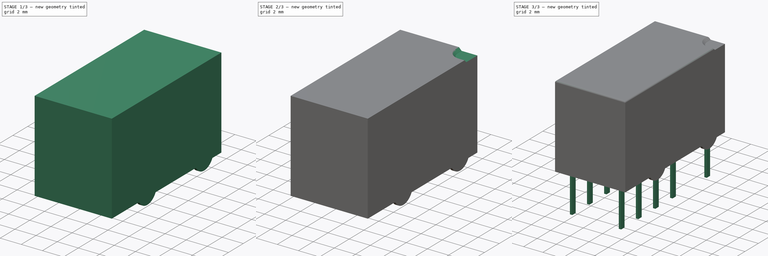
[diagram: build sequence overview — one tinted view per stage of 3, left to right]
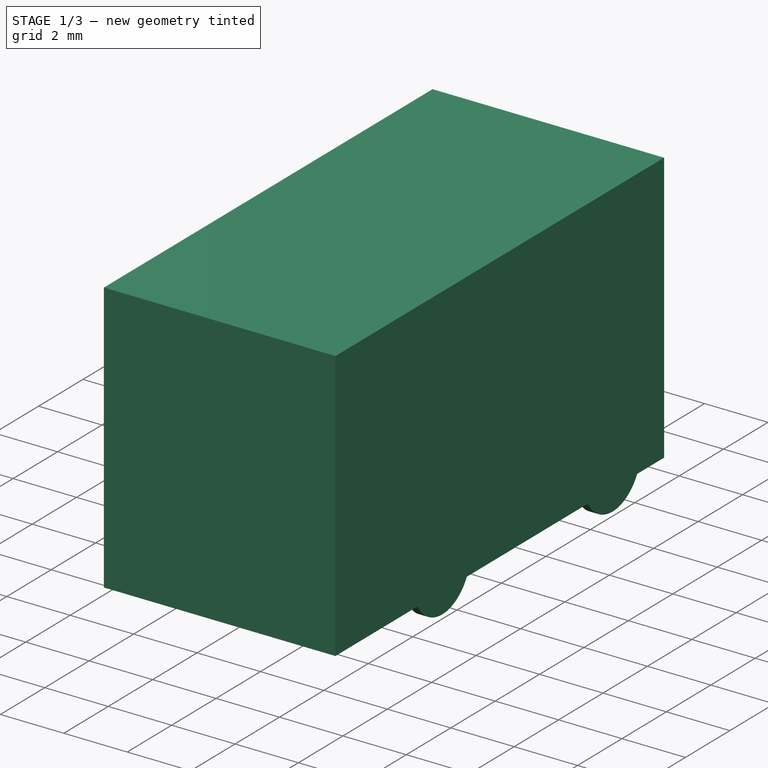
[diagram: stage 1 of 3 — iso view after this stage's code; geometry added in this stage tinted green]
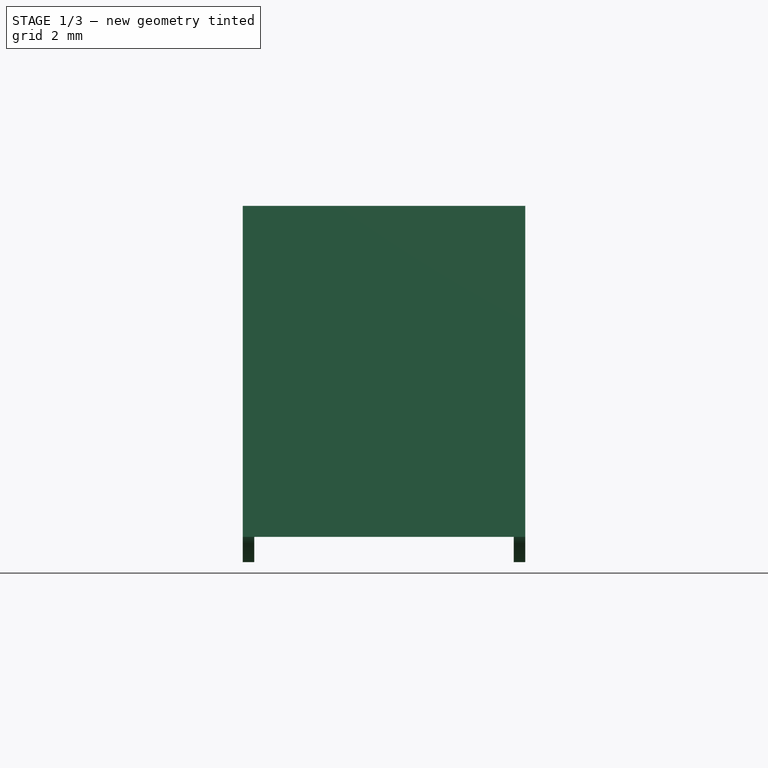
[diagram: stage 1 of 3 — front view after this stage's code; geometry added in this stage tinted green]
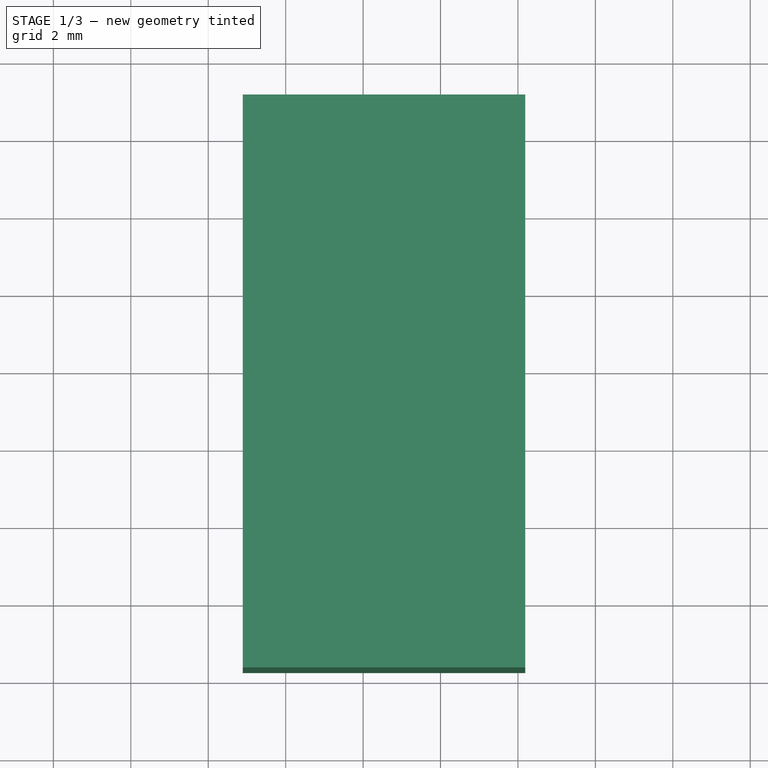
[diagram: stage 1 of 3 — top view after this stage's code; geometry added in this stage tinted green]
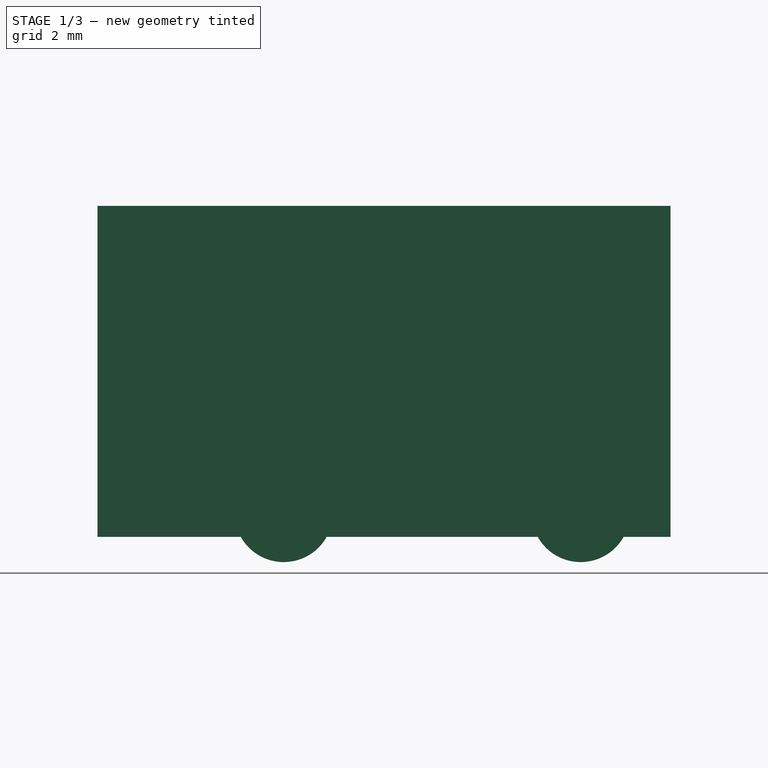
[diagram: stage 1 of 3 — right view after this stage's code; geometry added in this stage tinted green]
FCSTD DOCUMENT  (FreeCAD 0.16R6712 (Git))
Label: Relay_DPDT_Omron_G6SK-2
License: All rights reserved
LicenseURL: http://en.wikipedia.org/wiki/All_rights_reserved
objects: Sketcher::SketchObject×5, PartDesign::Pad×4, PartDesign::Pocket×1, PartDesign::Chamfer×1, PartDesign::Fillet×1, Part::MultiFuse×1
note: 18 computed .brp shape members not serialized (recipe doc carries the construction recipe); baked Part::Feature solids carry a one-line shape summary decoded from their .brp

FEATURE [Sketcher::SketchObject] Sketch
  Placement = pos=(0,0,0.65) rot=(0,0,-1;1.5708rad)
  sketch-geometry (4):
    g0: LineSegment StartX=-1.05 StartY=-1.11 StartZ=0 EndX=13.75 EndY=-1.11 EndZ=0
    g1: LineSegment StartX=13.75 StartY=-1.11 StartZ=0 EndX=13.75 EndY=6.19 EndZ=0
    g2: LineSegment StartX=13.75 StartY=6.19 StartZ=0 EndX=-1.05 EndY=6.19 EndZ=0
    g3: LineSegment StartX=-1.05 StartY=6.19 StartZ=0 EndX=-1.05 EndY=-1.11 EndZ=0
  constraints (12):
    c: Coincident(g0,g1)
    c: Coincident(g1,g2)
    c: Coincident(g2,g3)
    c: Coincident(g3,g0)
    c: Horizontal(g0)
    c: Horizontal(g2)
    c: Vertical(g1)
    c: Vertical(g3)
    c: DistanceX(g2,g2) = 14.8
    c: DistanceY(g1,g1) = 7.3
    c: DistanceX(g0,g-1) = 1.05
    c: DistanceY(g0,g-1) = 1.11
FEATURE [PartDesign::Pad] Pad
  Length = 8.55
  Length2 = 100
  Placement = pos=(0,0,0.65) rot=(0,0,-1;1.5708rad)
  Sketch = -> Sketch
  Type = 0
  expr: Length = 9.199999999999999 - 0.65
FEATURE [Sketcher::SketchObject] Sketch003
  Placement = pos=(6.19,0,0) rot=(0.57735,0.57735,0.57735;2.0944rad)
  expr: Placement.Base.x = 7.3 - 1.11
  sketch-geometry (5):
    g0: ArcOfCircle CenterX=-8.94 CenterY=1.27 CenterZ=0 NormalX=0 NormalY=0 NormalZ=1 Radius=1.27 StartAngle=3.14159 EndAngle=6.28319
    g1: LineSegment StartX=-10.21 StartY=1.27 StartZ=0 EndX=-7.67 EndY=1.27 EndZ=0
    g2: ArcOfCircle CenterX=-1.27 CenterY=1.27 CenterZ=0 NormalX=0 NormalY=0 NormalZ=1 Radius=1.27 StartAngle=3.14159 EndAngle=6.28319
    g3: LineSegment StartX=-2.54 StartY=1.27 StartZ=0 EndX=0 EndY=1.27 EndZ=0
    g4: LineSegment [constr] StartX=-7.67 StartY=1.27 StartZ=0 EndX=-2.54 EndY=1.27 EndZ=0
  constraints (16):
    c: Coincident(g1,g0)
    c: Coincident(g1,g0)
    c: Horizontal(g1)
    c: PointOnObject(g0,g1)
    c: DistanceY(g-1,g0) = 1.27
    c: Radius(g0) = 1.27
    c: Coincident(g3,g2)
    c: Coincident(g3,g2)
    c: Horizontal(g3)
    c: PointOnObject(g2,g3)
    c: Equal(g0,g2) = 0.5
    c: Coincident(g4,g0)
    c: Coincident(g4,g2)
    c: Horizontal(g4)
    c: DistanceX(g0,g2) = 7.67
    c: DistanceX(g2,g-1) = 1.27
FEATURE [PartDesign::Pad] Pad002
  Length = 0.3
  Length2 = 100
  Placement = pos=(6.19,0,0) rot=(0.57735,0.57735,0.57735;2.0944rad)
  Reversed = true
  Sketch = -> Sketch003
  Type = 0
FEATURE [Sketcher::SketchObject] Sketch004
  Placement = pos=(-1.11,0,0) rot=(0.57735,0.57735,0.57735;2.0944rad)
  expr: Placement.Base.x = -1.11
  sketch-geometry (5):
    g0: ArcOfCircle CenterX=-8.94 CenterY=1.27 CenterZ=0 NormalX=0 NormalY=0 NormalZ=1 Radius=1.27 StartAngle=3.14159 EndAngle=6.28319
    g1: LineSegment StartX=-10.21 StartY=1.27 StartZ=0 EndX=-7.67 EndY=1.27 EndZ=0
    g2: ArcOfCircle CenterX=-1.27 CenterY=1.27 CenterZ=0 NormalX=0 NormalY=0 NormalZ=1 Radius=1.27 StartAngle=3.14159 EndAngle=6.28319
    g3: LineSegment StartX=-2.54 StartY=1.27 StartZ=0 EndX=0 EndY=1.27 EndZ=0
    g4: LineSegment [constr] StartX=-7.67 StartY=1.27 StartZ=0 EndX=-2.54 EndY=1.27 EndZ=0
  constraints (16):
    c: Coincident(g1,g0)
    c: Coincident(g1,g0)
    c: Horizontal(g1)
    c: PointOnObject(g0,g1)
    c: DistanceY(g-1,g0) = 1.27
    c: Radius(g0) = 1.27
    c: Coincident(g3,g2)
    c: Coincident(g3,g2)
    c: Horizontal(g3)
    c: PointOnObject(g2,g3)
    c: Equal(g0,g2) = 0.5
    c: Coincident(g4,g0)
    c: Coincident(g4,g2)
    c: Horizontal(g4)
    c: DistanceX(g0,g2) = 7.67
    c: DistanceX(g2,g-1) = 1.27
FEATURE [PartDesign::Pad] Pad003
  Length = 0.3
  Length2 = 100
  Placement = pos=(-1.11,0,0) rot=(0.57735,0.57735,0.57735;2.0944rad)
  Sketch = -> Sketch004
  Type = 0
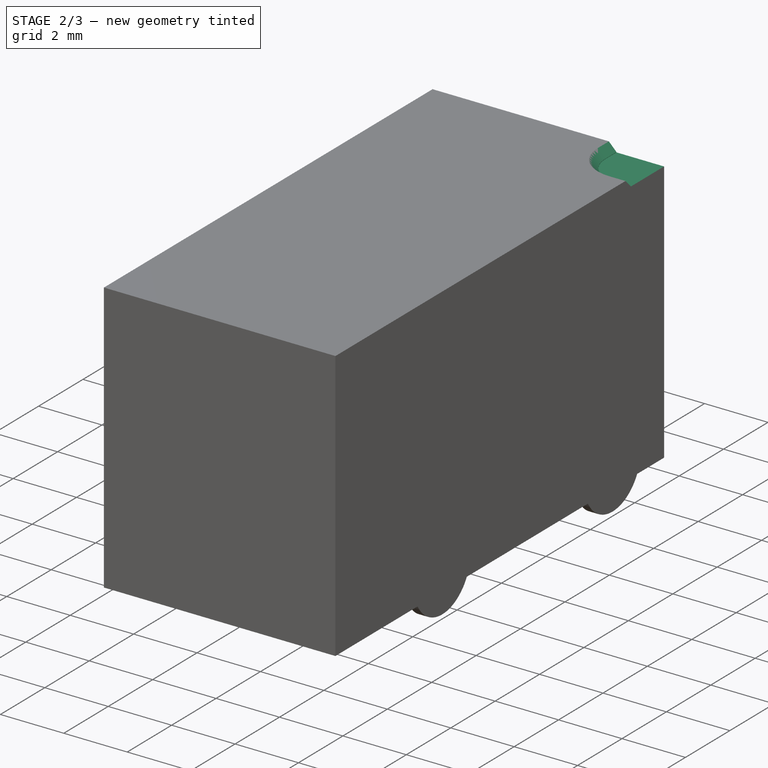
[diagram: stage 2 of 3 — iso view after this stage's code; geometry added in this stage tinted green]
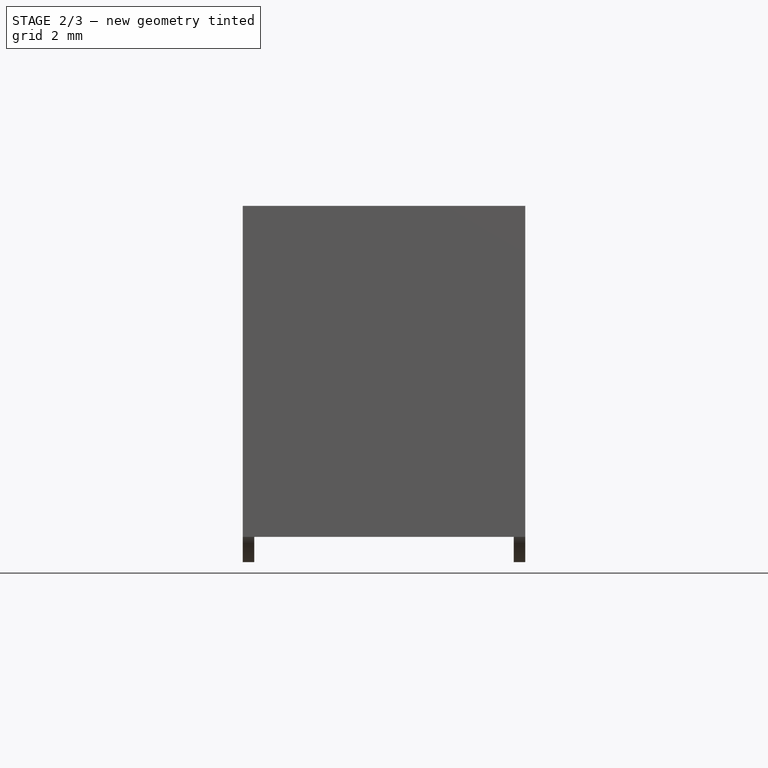
[diagram: stage 2 of 3 — front view after this stage's code; geometry added in this stage tinted green]
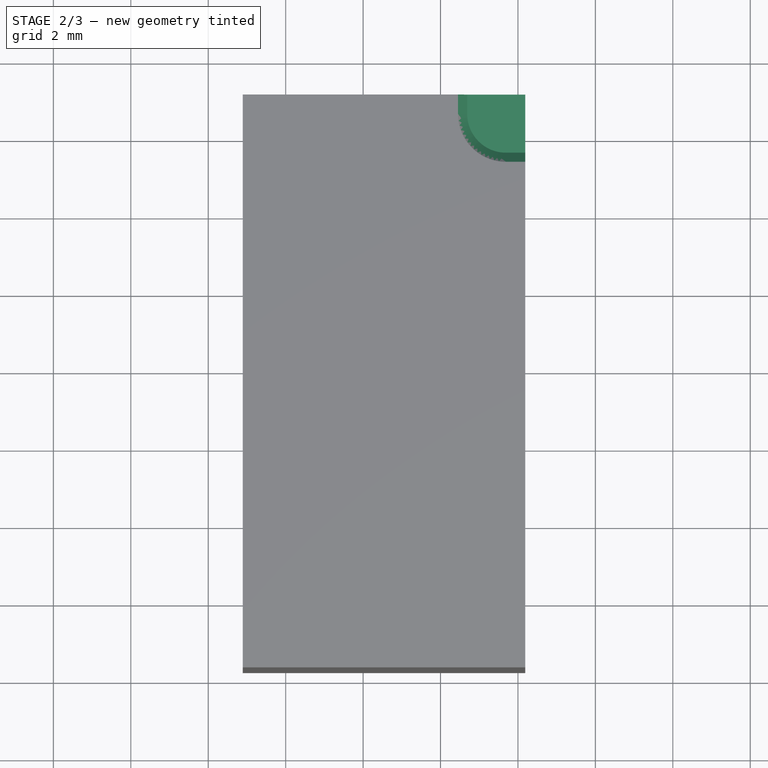
[diagram: stage 2 of 3 — top view after this stage's code; geometry added in this stage tinted green]
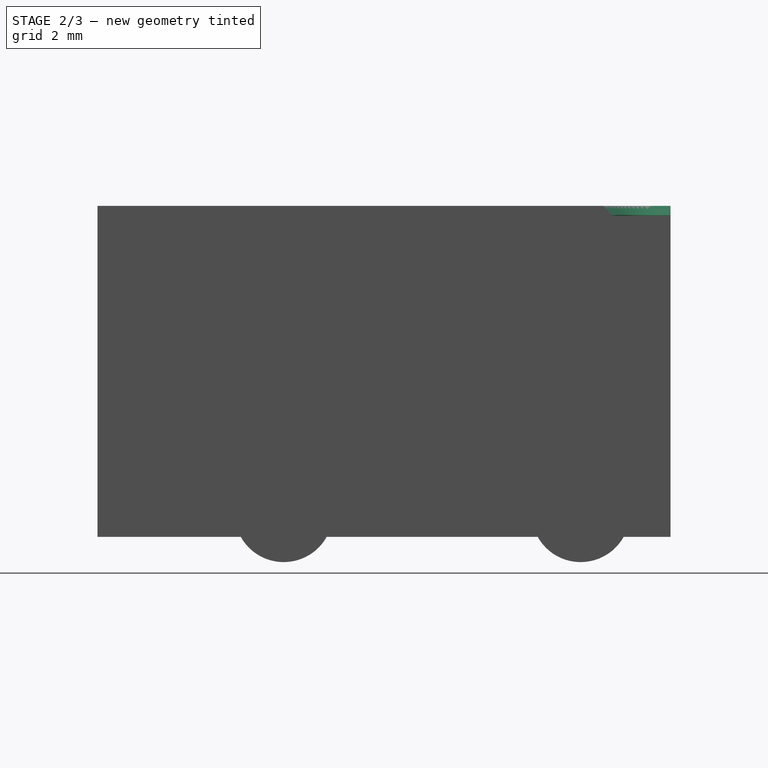
[diagram: stage 2 of 3 — right view after this stage's code; geometry added in this stage tinted green]
FEATURE [Sketcher::SketchObject] Sketch002
  ExternalGeometry = -> [Pad]
  Placement = pos=(0,0,9.2) rot=(0,0,-1;1.5708rad)
  Support = -> Pad [Face6]
  sketch-geometry (5):
    g0: ArcOfCircle CenterX=-0.55 CenterY=5.69 CenterZ=0 NormalX=0 NormalY=0 NormalZ=1 Radius=1 StartAngle=4.71239 EndAngle=6.28319
    g1: LineSegment StartX=-0.55 StartY=4.69 StartZ=0 EndX=-1.05 EndY=4.69 EndZ=0
    g2: LineSegment StartX=-1.05 StartY=4.69 StartZ=0 EndX=-1.05 EndY=6.19 EndZ=0
    g3: LineSegment StartX=-1.05 StartY=6.19 StartZ=0 EndX=0.45 EndY=6.19 EndZ=0
    g4: LineSegment StartX=0.45 StartY=6.19 StartZ=0 EndX=0.45 EndY=5.69 EndZ=0
  constraints (15):
    c: Coincident(g1,g0)
    c: PointOnObject(g1,g-4)
    c: Coincident(g2,g1)
    c: Coincident(g2,g-4)
    c: Coincident(g3,g2)
    c: PointOnObject(g3,g-3)
    c: Coincident(g4,g3)
    c: Coincident(g4,g0)
    c: Vertical(g4)
    c: Horizontal(g1)
    c: DistanceY(g0,g2) = 0.5
    c: DistanceX(g2,g0) = 0.5
    c: Tangent(g1,g0)
    c: Tangent(g0,g4)
    c: Radius(g0) = 1
FEATURE [PartDesign::Pocket] Pocket
  Length = 0.25
  Placement = pos=(0,0,0.65) rot=(0,0,-1;1.5708rad)
  Sketch = -> Sketch002
  Type = 0
FEATURE [PartDesign::Chamfer] Chamfer
  Base = -> Pocket [Edge16,Edge15,Edge17]
  Placement = pos=(0,0,0.65) rot=(0,0,-1;1.5708rad)
  Size = 0.24
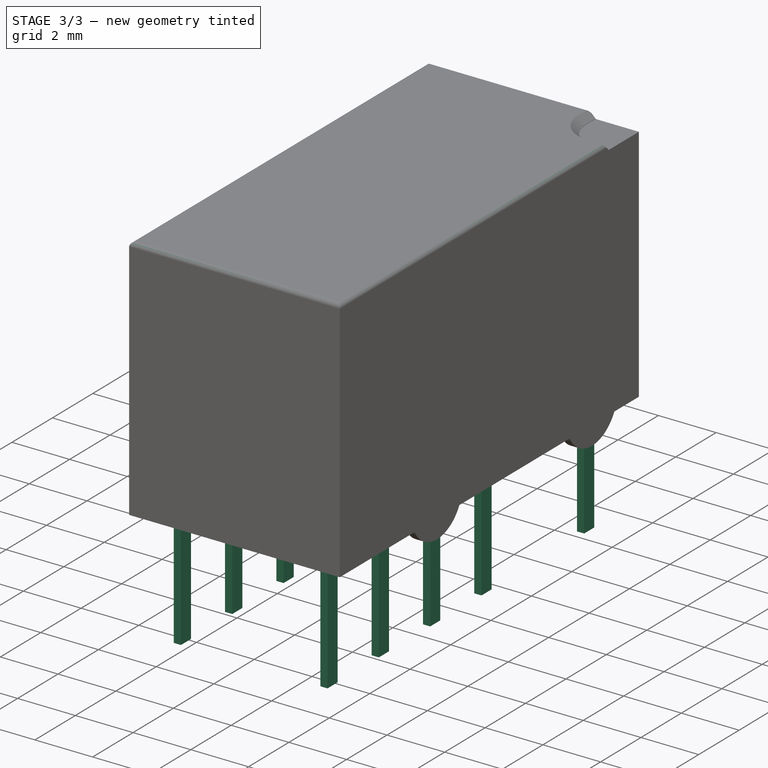
[diagram: stage 3 of 3 — iso view after this stage's code; geometry added in this stage tinted green]
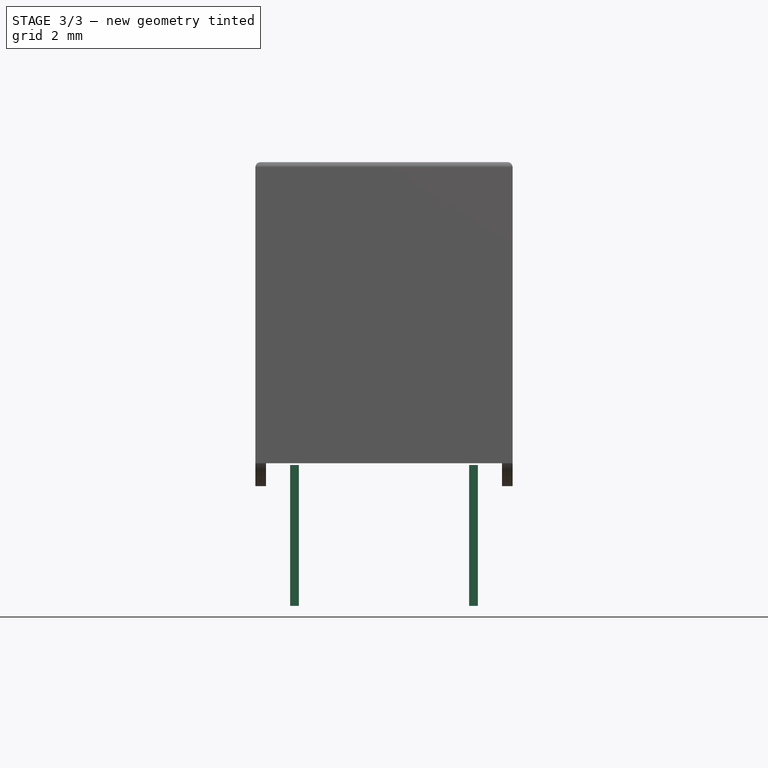
[diagram: stage 3 of 3 — front view after this stage's code; geometry added in this stage tinted green]
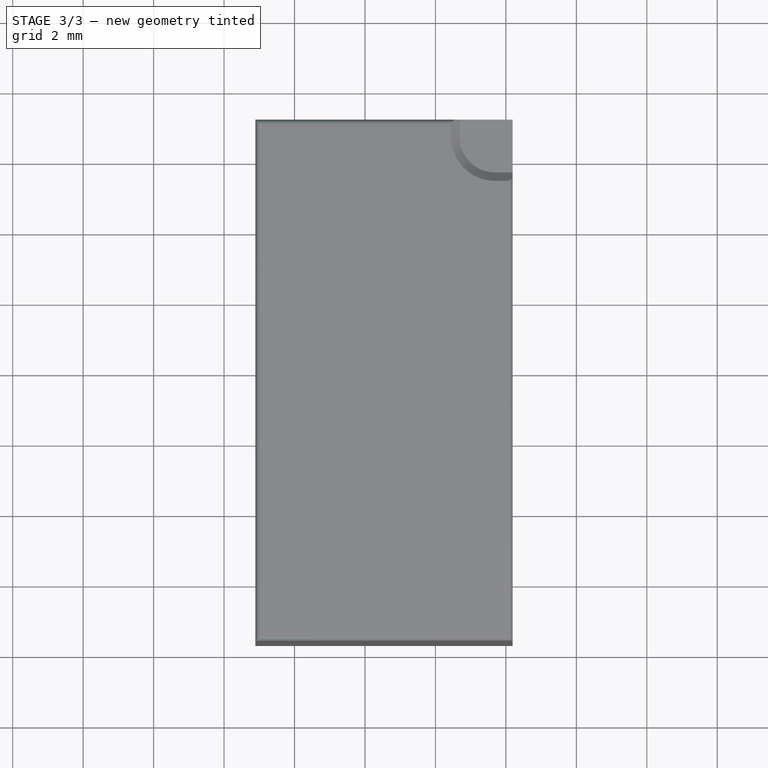
[diagram: stage 3 of 3 — top view after this stage's code; geometry added in this stage tinted green]
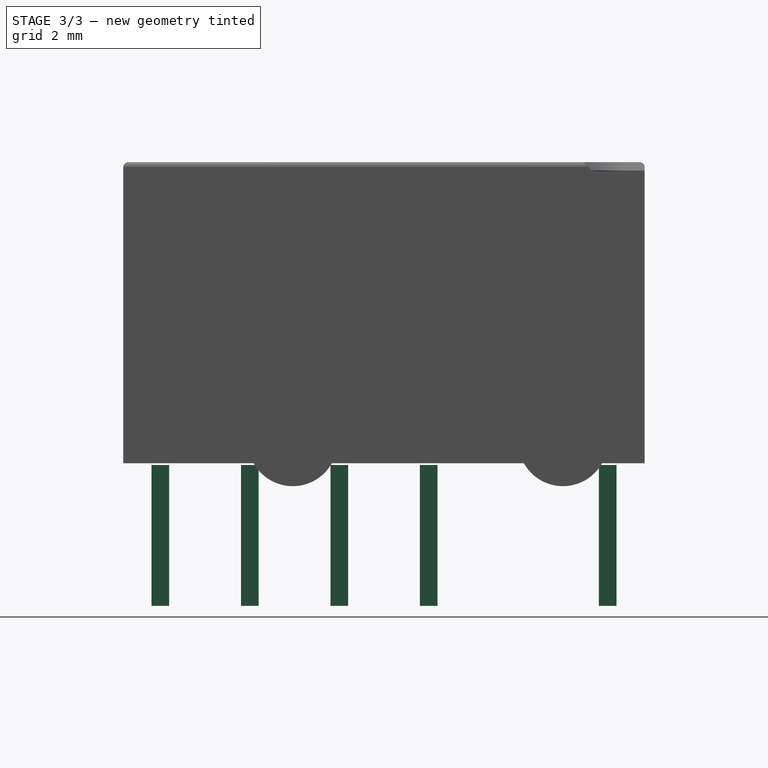
[diagram: stage 3 of 3 — right view after this stage's code; geometry added in this stage tinted green]
FEATURE [Sketcher::SketchObject] Sketch001
  Placement = pos=(0,0,0.6) rot=(0,0,-1;1.5708rad)
  sketch-geometry (54):
    g0: LineSegment StartX=-0.25 StartY=-0.125 StartZ=0 EndX=0.25 EndY=-0.125 EndZ=0
    g1: LineSegment StartX=0.25 StartY=-0.125 StartZ=0 EndX=0.25 EndY=0.125 EndZ=0
    g2: LineSegment StartX=0.25 StartY=0.125 StartZ=0 EndX=-0.25 EndY=0.125 EndZ=0
    g3: LineSegment StartX=-0.25 StartY=0.125 StartZ=0 EndX=-0.25 EndY=-0.125 EndZ=0
    g4: LineSegment StartX=4.83 StartY=0.125 StartZ=0 EndX=5.33 EndY=0.125 EndZ=0
    g5: LineSegment StartX=5.33 StartY=0.125 StartZ=0 EndX=5.33 EndY=-0.125 EndZ=0
    g6: LineSegment StartX=5.33 StartY=-0.125 StartZ=0 EndX=4.83 EndY=-0.125 EndZ=0
    g7: LineSegment StartX=4.83 StartY=-0.125 StartZ=0 EndX=4.83 EndY=0.125 EndZ=0
    g8: LineSegment StartX=-0.25 StartY=4.955 StartZ=0 EndX=0.25 EndY=4.955 EndZ=0
    g9: LineSegment StartX=0.25 StartY=4.955 StartZ=0 EndX=0.25 EndY=5.205 EndZ=0
    g10: LineSegment StartX=0.25 StartY=5.205 StartZ=0 EndX=-0.25 EndY=5.205 EndZ=0
    g11: LineSegment StartX=-0.25 StartY=5.205 StartZ=0 EndX=-0.25 EndY=4.955 EndZ=0
    g12: LineSegment StartX=5.33 StartY=4.955 StartZ=0 EndX=4.83 EndY=4.955 EndZ=0
    g13: LineSegment StartX=4.83 StartY=4.955 StartZ=0 EndX=4.83 EndY=5.205 EndZ=0
    g14: LineSegment StartX=4.83 StartY=5.205 StartZ=0 EndX=5.33 EndY=5.205 EndZ=0
    g15: LineSegment StartX=5.33 StartY=5.205 StartZ=0 EndX=5.33 EndY=4.955 EndZ=0
    g16: LineSegment StartX=7.87 StartY=0.125 StartZ=0 EndX=7.37 EndY=0.125 EndZ=0
    g17: LineSegment StartX=7.37 StartY=0.125 StartZ=0 EndX=7.37 EndY=-0.125 EndZ=0
    g18: LineSegment StartX=7.37 StartY=-0.125 StartZ=0 EndX=7.87 EndY=-0.125 EndZ=0
    g19: LineSegment StartX=7.87 StartY=-0.125 StartZ=0 EndX=7.87 EndY=0.125 EndZ=0
    g20: LineSegment StartX=7.87 StartY=5.205 StartZ=0 EndX=7.37 EndY=5.205 EndZ=0
    g21: LineSegment StartX=7.37 StartY=5.205 StartZ=0 EndX=7.37 EndY=4.955 EndZ=0
    g22: LineSegment StartX=7.37 StartY=4.955 StartZ=0 EndX=7.87 EndY=4.955 EndZ=0
    g23: LineSegment StartX=7.87 StartY=4.955 StartZ=0 EndX=7.87 EndY=5.205 EndZ=0
    g24: GeomPoint [constr] X=5.33 Y=0 Z=0
    g25: GeomPoint [constr] X=7.37 Y=0 Z=0
    g26: LineSegment [constr] StartX=-0.25 StartY=5.08 StartZ=0 EndX=7.87 EndY=5.08 EndZ=0
    g27: GeomPoint [constr] X=4.83 Y=5.08 Z=0
    g28: LineSegment StartX=9.91 StartY=5.205 StartZ=0 EndX=10.41 EndY=5.205 EndZ=0
    g29: LineSegment StartX=10.41 StartY=5.205 StartZ=0 EndX=10.41 EndY=4.955 EndZ=0
    g30: LineSegment StartX=10.41 StartY=4.955 StartZ=0 EndX=9.91 EndY=4.955 EndZ=0
    g31: LineSegment StartX=9.91 StartY=4.955 StartZ=0 EndX=9.91 EndY=5.205 EndZ=0
    g32: LineSegment StartX=9.91 StartY=0.125 StartZ=0 EndX=10.41 EndY=0.125 EndZ=0
    g33: LineSegment StartX=10.41 StartY=0.125 StartZ=0 EndX=10.41 EndY=-0.125 EndZ=0
    g34: LineSegment StartX=10.41 StartY=-0.125 StartZ=0 EndX=9.91 EndY=-0.125 EndZ=0
    g35: LineSegment StartX=9.91 StartY=-0.125 StartZ=0 EndX=9.91 EndY=0.125 EndZ=0
    g36: LineSegment [constr] StartX=7.87 StartY=5.08 StartZ=0 EndX=9.91 EndY=5.08 EndZ=0
    g37: LineSegment [constr] StartX=9.91 StartY=4.955 StartZ=0 EndX=9.91 EndY=0.125 EndZ=0
    g38: GeomPoint [constr] X=9.91 Y=0 Z=0
    g39: GeomPoint [constr] X=-0.25 Y=0 Z=0
    g40: GeomPoint [constr] X=0 Y=0.125 Z=0
    g41: LineSegment [constr] StartX=4.83 StartY=4.955 StartZ=0 EndX=4.83 EndY=0.125 EndZ=0
    g42: LineSegment [constr] StartX=7.37 StartY=4.955 StartZ=0 EndX=7.37 EndY=0.125 EndZ=0
    g43: LineSegment StartX=12.45 StartY=5.205 StartZ=0 EndX=12.95 EndY=5.205 EndZ=0
    g44: LineSegment StartX=12.95 StartY=5.205 StartZ=0 EndX=12.95 EndY=4.955 EndZ=0
    g45: LineSegment StartX=12.95 StartY=4.955 StartZ=0 EndX=12.45 EndY=4.955 EndZ=0
    g46: LineSegment StartX=12.45 StartY=4.955 StartZ=0 EndX=12.45 EndY=5.205 EndZ=0
    g47: LineSegment StartX=12.45 StartY=0.125 StartZ=0 EndX=12.95 EndY=0.125 EndZ=0
    g48: LineSegment StartX=12.95 StartY=0.125 StartZ=0 EndX=12.95 EndY=-0.125 EndZ=0
    g49: LineSegment StartX=12.95 StartY=-0.125 StartZ=0 EndX=12.45 EndY=-0.125 EndZ=0
    g50: LineSegment StartX=12.45 StartY=-0.125 StartZ=0 EndX=12.45 EndY=0.125 EndZ=0
    g51: GeomPoint [constr] X=12.45 Y=0 Z=0
    g52: LineSegment [constr] StartX=12.45 StartY=0 StartZ=0 EndX=12.45 EndY=5.08 EndZ=0
    g53: LineSegment [constr] StartX=9.91 StartY=5.08 StartZ=0 EndX=12.45 EndY=5.08 EndZ=0
  constraints (148):
    c: Coincident(g0,g1)
    c: Coincident(g1,g2)
    c: Coincident(g2,g3)
    c: Coincident(g3,g0)
    c: Horizontal(g0)
    c: Horizontal(g2)
    c: Vertical(g1)
    c: Vertical(g3)
    c: DistanceX(g2,g2) = 0.5
    c: DistanceY(g1,g1) = 0.25
    c: Coincident(g4,g5)
    c: Coincident(g5,g6)
    c: Coincident(g6,g7)
    c: Coincident(g7,g4)
    c: Horizontal(g4)
    c: Horizontal(g6)
    c: Vertical(g5)
    c: Vertical(g7)
    c: Coincident(g8,g9)
    c: Coincident(g9,g10)
    c: Coincident(g10,g11)
    c: Coincident(g11,g8)
    c: Horizontal(g8)
    c: Horizontal(g10)
    c: Vertical(g9)
    c: Vertical(g11)
    c: Equal(g2,g10) = 0.3
    c: Equal(g1,g9) = 0.3
    c: Coincident(g12,g13)
    c: Coincident(g13,g14)
    c: Coincident(g14,g15)
    c: Coincident(g15,g12)
    c: Horizontal(g12)
    c: Horizontal(g14)
    c: Vertical(g13)
    c: Vertical(g15)
    c: DistanceY(g15,g15) = 0.25
    c: DistanceX(g8,g2) = 0
    c: Horizontal(g18)
    c: Horizontal(g20)
    c: Horizontal(g22)
    c: PointOnObject(g24,g5)
    c: Symmetric(g5,g5,g24)
    c: PointOnObject(g24,g-1)
    c: PointOnObject(g25,g17)
    c: PointOnObject(g25,g-1)
    c: Symmetric(g17,g17,g25)
    c: PointOnObject(g26,g11)
    c: PointOnObject(g26,g23)
    c: Horizontal(g26)
    c: Symmetric(g23,g23,g26)
    c: PointOnObject(g27,g13)
    c: PointOnObject(g27,g26)
    c: Symmetric(g13,g13,g27)
    c: Symmetric(g11,g11,g26)
    c: DistanceY(g-1,g26) = 5.08
    c: Coincident(g28,g29)
    c: Coincident(g29,g30)
    c: Coincident(g30,g31)
    c: Coincident(g31,g28)
    c: Horizontal(g28)
    c: Vertical(g29)
    c: Vertical(g31)
    c: Coincident(g32,g33)
    c: Coincident(g33,g34)
    c: Coincident(g34,g35)
    c: Coincident(g35,g32)
    c: Horizontal(g32)
    c: Horizontal(g34)
    c: Vertical(g33)
    c: Vertical(g35)
    c: Coincident(g36,g26)
    c: PointOnObject(g36,g31)
    c: Horizontal(g36)
    c: Symmetric(g31,g31,g36)
    c: DistanceX(g20,g28) = 2.54
    c: Coincident(g37,g30)
    c: Coincident(g37,g32)
    c: Vertical(g37)
    c: PointOnObject(g38,g35)
    c: PointOnObject(g38,g-1)
    c: Symmetric(g35,g35,g38)
    c: PointOnObject(g39,g3)
    c: PointOnObject(g40,g-2)
    c: Symmetric(g2,g2,g40)
    c: PointOnObject(g39,g-1)
    c: Symmetric(g3,g3,g39)
    c: Coincident(g21,g22)
    c: Vertical(g21)
    c: Coincident(g21,g20)
    c: Coincident(g20,g23)
    c: Coincident(g22,g23)
    c: Vertical(g23)
    c: DistanceX(g14,g14) = 0.5
    c: Coincident(g16,g17)
    c: Coincident(g16,g19)
    c: Coincident(g18,g19)
    c: Coincident(g17,g18)
    c: Vertical(g19)
    c: Horizontal(g16)
    c: Vertical(g17)
    c: Equal(g28,g20)
    c: Equal(g20,g14)
    c: Equal(g14,g4)
    c: Equal(g4,g16)
    c: Equal(g16,g32)
    c: Equal(g15,g23)
    c: Equal(g23,g29)
    c: Equal(g29,g33)
    c: Equal(g33,g19)
    c: Equal(g19,g7)
    c: Coincident(g41,g12)
    c: Coincident(g41,g4)
    c: Coincident(g42,g21)
    c: Coincident(g42,g16)
    c: Vertical(g42)
    c: Vertical(g41)
    c: DistanceX(g2,g4) = 5.08
    c: DistanceX(g13,g20) = 2.54
    c: Coincident(g43,g44)
    c: Coincident(g44,g45)
    c: Coincident(g45,g46)
    c: Coincident(g46,g43)
    c: Horizontal(g43)
    c: Horizontal(g45)
    c: Vertical(g44)
    c: Vertical(g46)
    c: Coincident(g47,g48)
    c: Coincident(g48,g49)
    c: Coincident(g49,g50)
    c: Coincident(g50,g47)
    c: Horizontal(g47)
    c: Horizontal(g49)
    c: Vertical(g48)
    c: Vertical(g50)
    c: PointOnObject(g51,g-1)
    c: Symmetric(g50,g50,g51)
    c: Equal(g47,g32)
    c: Equal(g32,g43)
    c: Equal(g46,g48)
    c: Equal(g48,g33)
    c: DistanceX(g38,g51) = 2.54
    c: Coincident(g52,g51)
    c: Symmetric(g46,g46,g52)
    c: Vertical(g52)
    c: Coincident(g53,g36)
    c: Coincident(g53,g52)
    c: Horizontal(g53)
FEATURE [PartDesign::Pad] Pad001
  Length = 4
  Length2 = 100
  Placement = pos=(0,0,0.6) rot=(0,0,-1;1.5708rad)
  Reversed = true
  Sketch = -> Sketch001
  Type = 0
FEATURE [PartDesign::Fillet] Fillet
  Base = -> Chamfer [Edge8,Edge1,Edge12,Edge10]
  Placement = pos=(0,0,0.65) rot=(0,0,-1;1.5708rad)
  Radius = 0.15
FEATURE [Part::MultiFuse] Pad003_mp_cp  label="Relay_DPDT_Omron_G6SK-2"
  Shapes = -> [Pad003,Pad002,Fillet,Pad001]
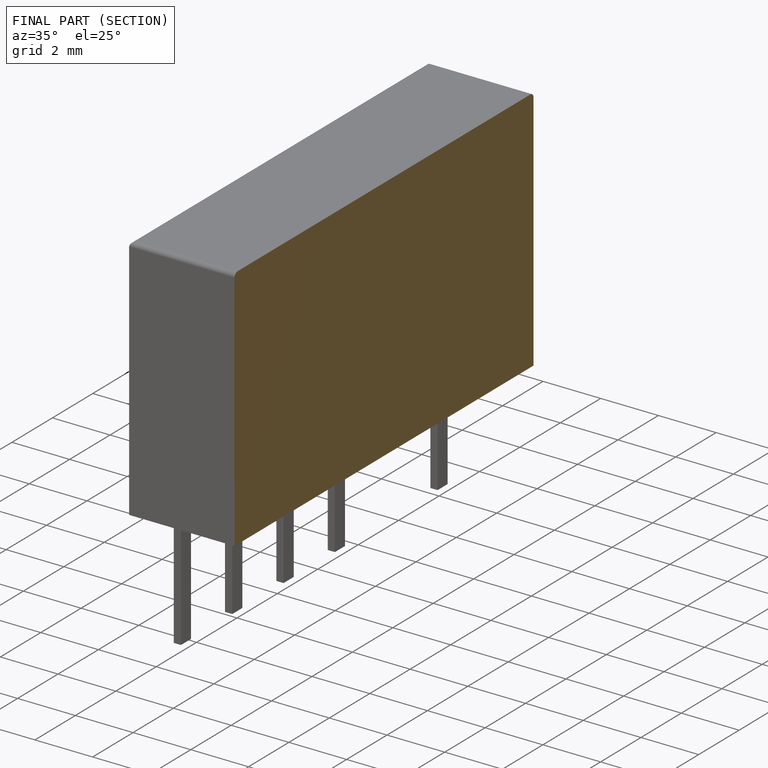
[diagram: finished part — half-section view (interior)]
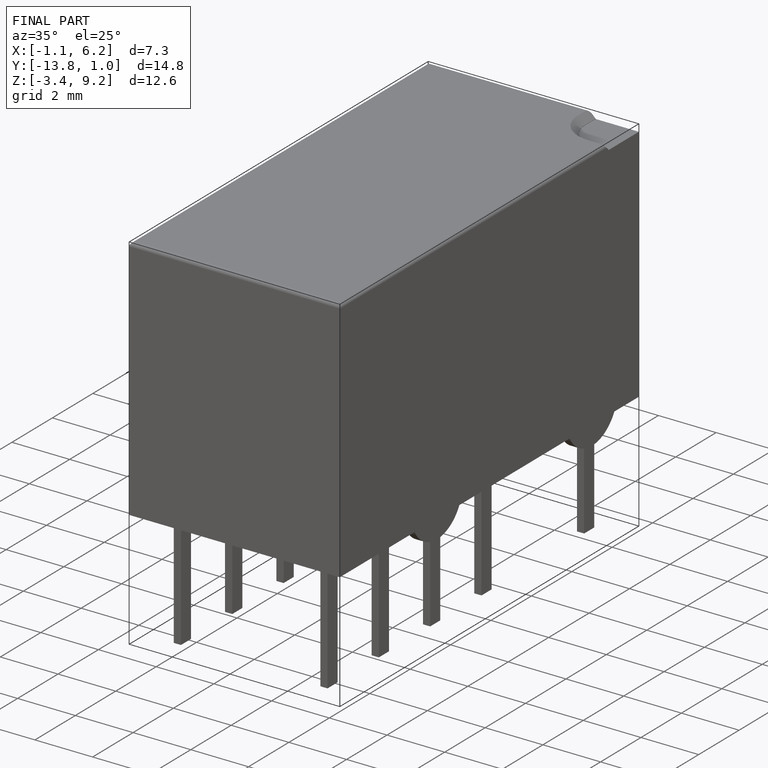
[diagram: finished part — iso view with bounding-box wireframe]
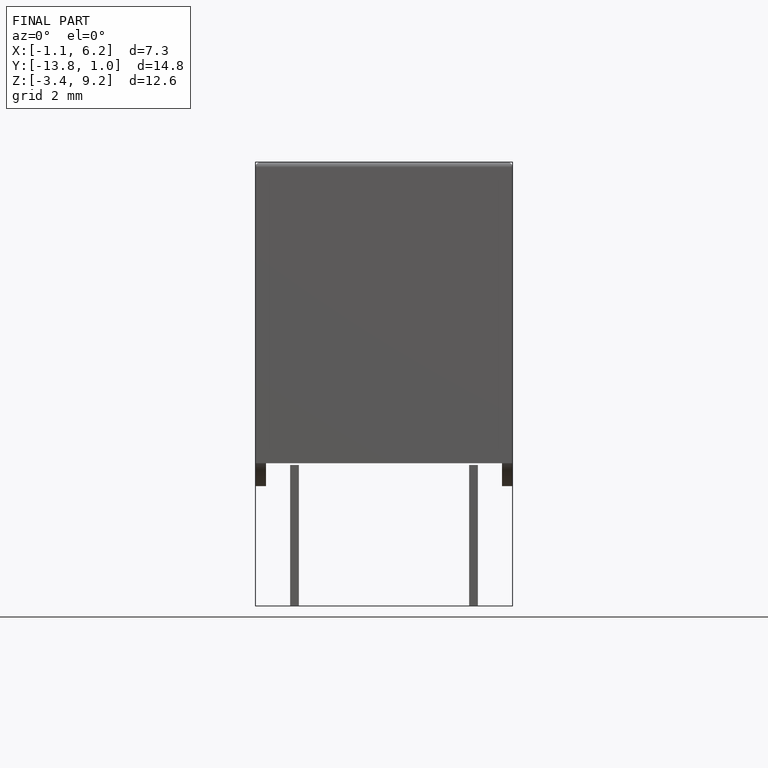
[diagram: finished part — front view with bounding-box wireframe]
